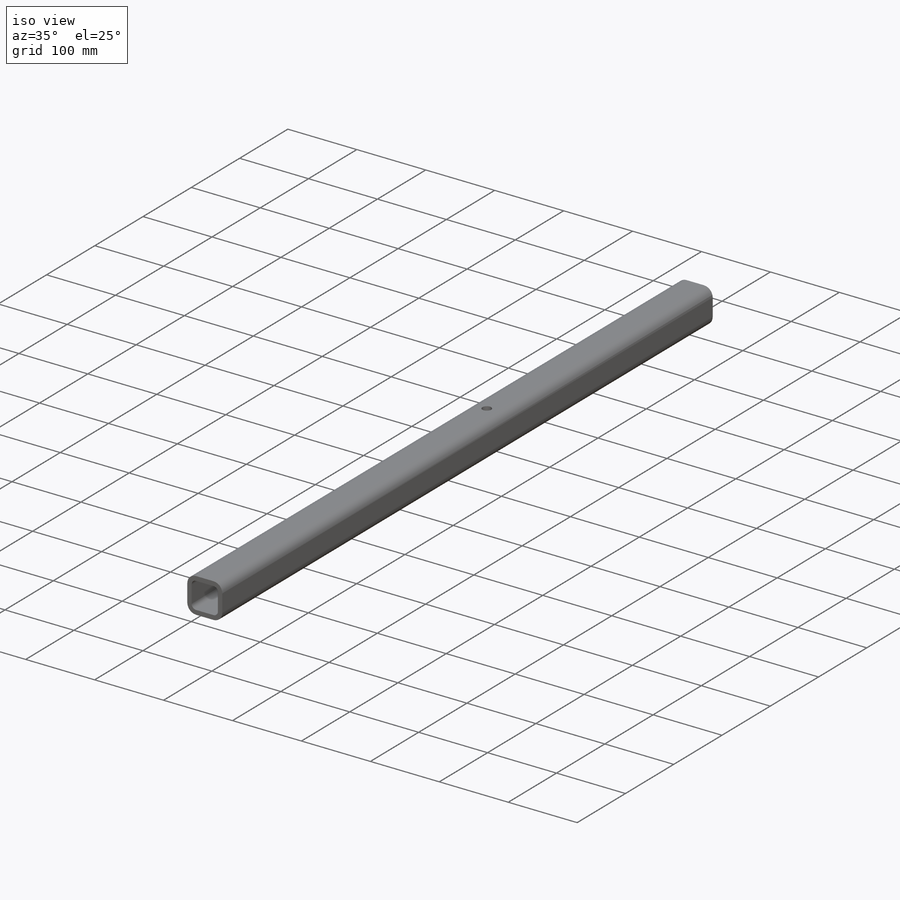
[diagram: iso view]
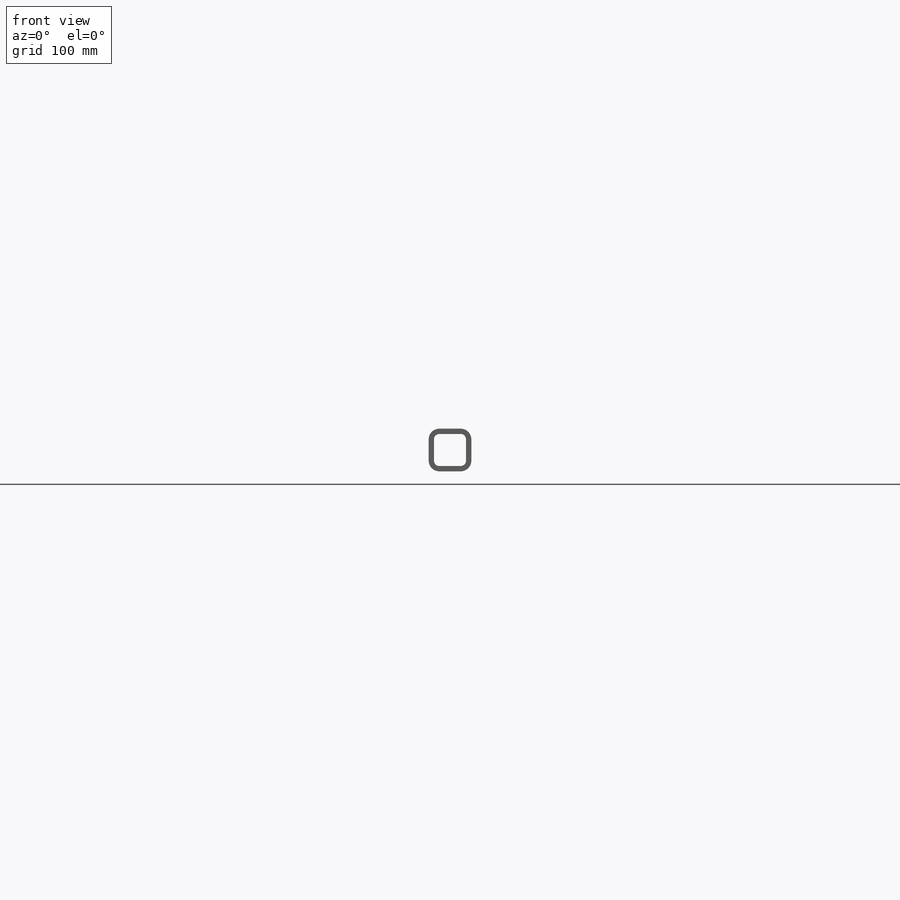
[diagram: front view]
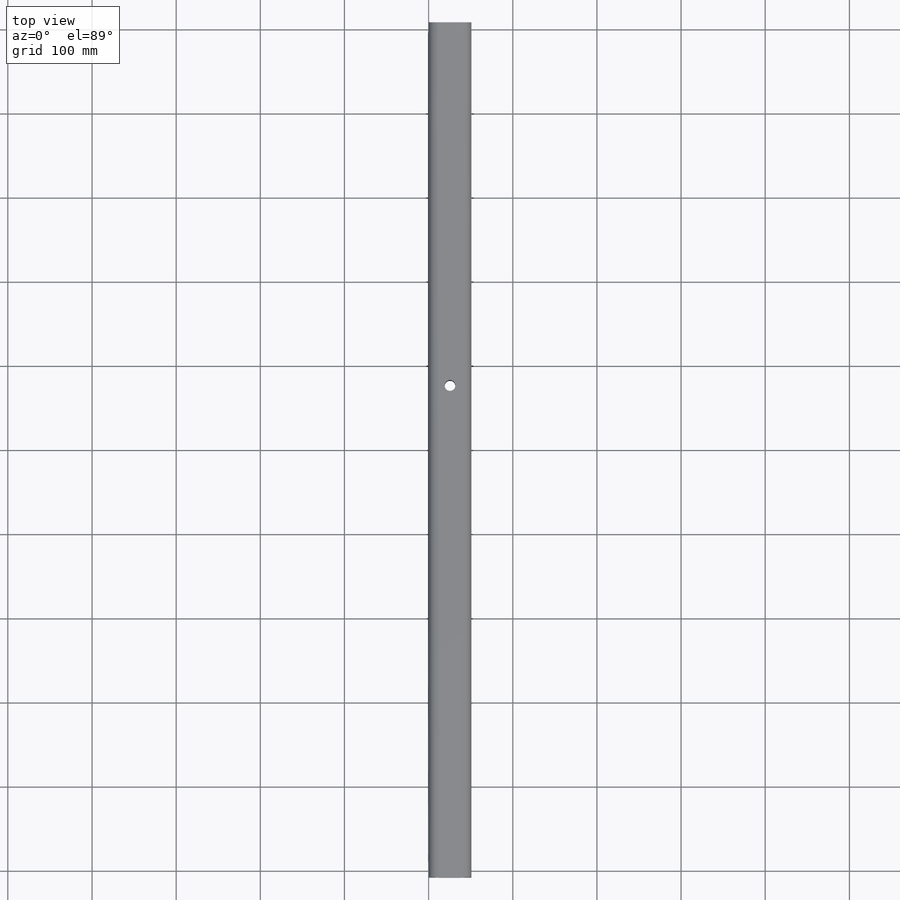
[diagram: top view]
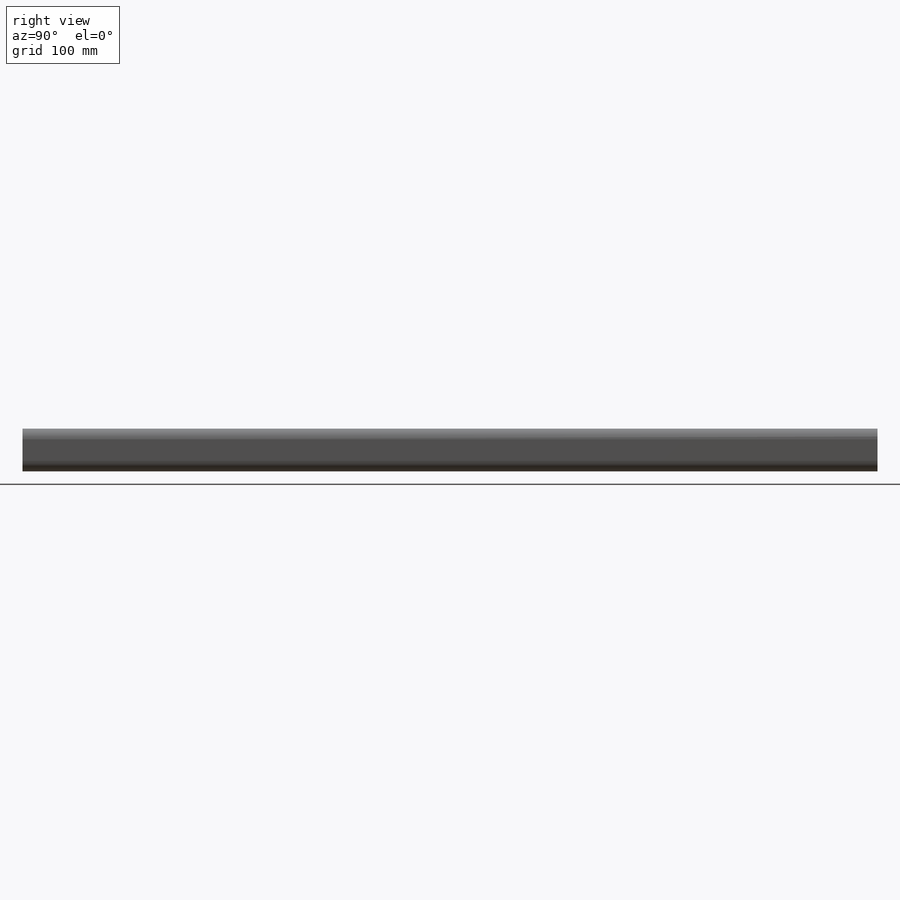
[diagram: right view]
SOLIDWORKS PART (.sldprt)
format: sldprt  version: not decoded by parser v0  size: 228,864 bytes
history: native  units: mm
features: sketch x5, material x1, extrude x1, hole x1, cut_extrude x1 (+11 scaffold rows collapsed)
feature tree (20):
  scaffold x11  (default folders/planes/origin — collapsed)
  material  "Material <not specified>"
  sketch  "Sketch1"  dims[c1.D1=6.35mm c1.D2=6.35mm c1.D3=6.35mm c1.D4=6.35mm c1.D5=6.35mm c1.D6=6.35mm c1.D7=6.35mm c1.D8=6.35mm c2.D1=6.604mm c2.D2=6.604mm c2.D3=6.604mm c2.D4=6.604mm c3.D1=12.7mm c3.Thickness=6.35mm c3.D4=12.9032mm c3.D5=12.9286mm c3.V_leg=50.8mm c3.H_leg=50.8mm c4.D4=50.3428mm c4.D5=50.8508mm c5.D4=~41.274964mm c5.D5=~41.274964mm]
  extrude  "Boss-Extrude1"  Depth=1016mm
  hole  "1/2 (0.5) Diameter Hole1"  Diameter=12.7mm Depth=50.8mm
  sketch  "Sketch3"  dims[c1.D1=749.3mm c1.D2=25.4mm c2.D1=584.2mm]
  sketch  "Sketch4"  dims[hole-wizard template sketch: 60 standard entries collapsed; hole parameters kept: c18.Thru Hole Depth=50.8mm]
  sketch  "Sketch8"  dims[D1=38.1mm D2=50.8mm]
  sketch  "Sketch9"  dims[c1.D2=6.35mm c1.D1=19.05mm c2.D2=~15.101061mm c2.D3=19.05mm]
  cut_extrude  "Cut-Extrude3"  [1 undecoded]
decode coverage: 7 of 8 modeling features carry decoded parameters
note: ~ marks probable driven/reference dimensions
note: 1 parameter value undecoded
note: suppression state not decoded; provenance and decode notes live in map.json
